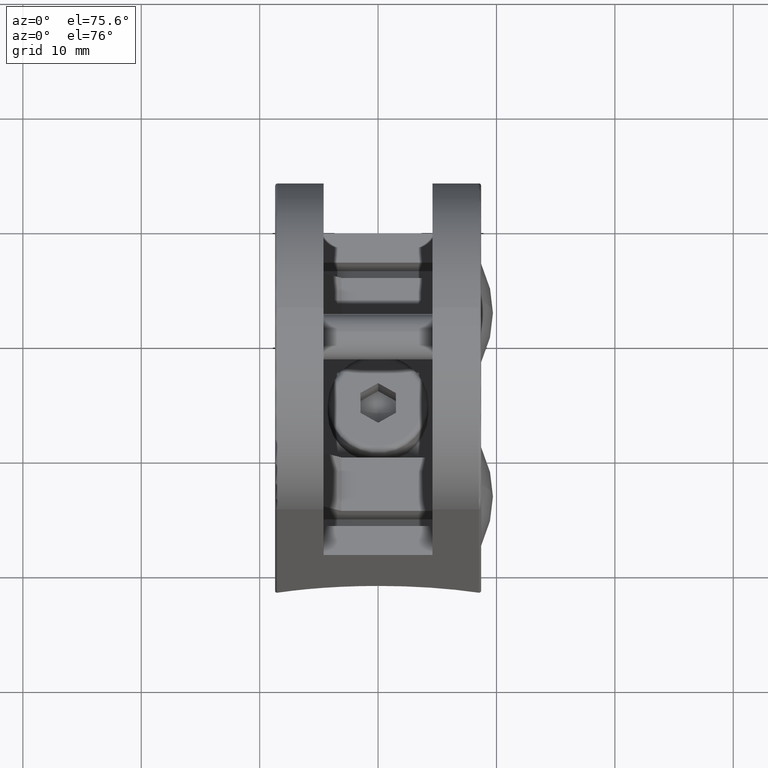
[diagram: clean part render]
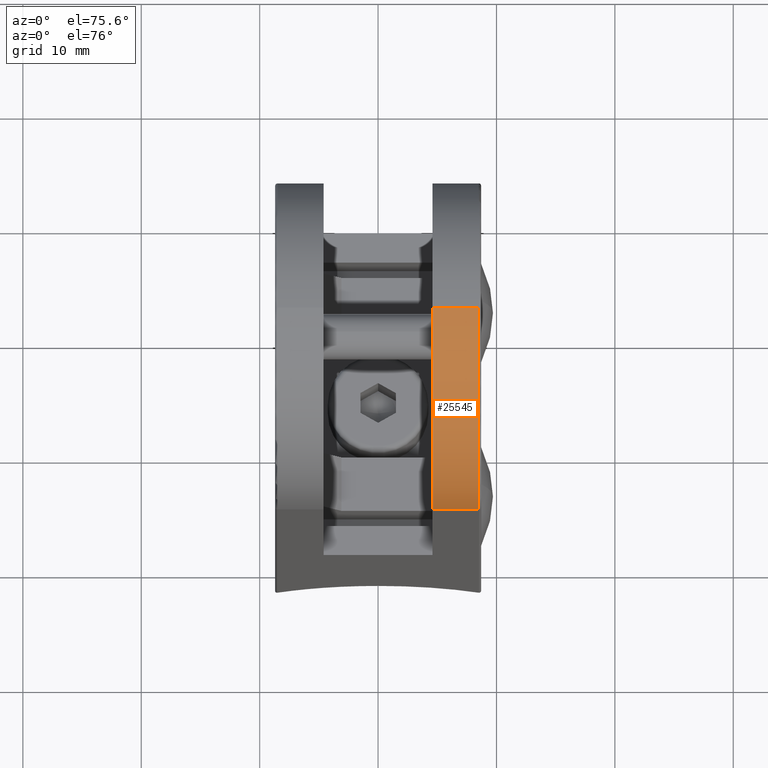
[diagram: same view with one face highlighted and labeled with its STEP entity id]
A machine part, auxiliary view. The second image highlights one B-rep face of the part: STEP entity #25545.
In plain terms, the highlighted cylindrical surface (partial cylindrical patch) has radius 14 mm, axis along (1, 0, 0).
Its self-contained STEP definition (entity closure, byte-faithful):
#2089 = LINE ( 'NONE', #13456, #51732 ) ;
#4888 = EDGE_LOOP ( 'NONE', ( #18836, #37095, #25374, #20579 ) ) ;
#5304 = FACE_OUTER_BOUND ( 'NONE', #4888, .T. ) ;
#6763 = AXIS2_PLACEMENT_3D ( 'NONE', #43684, #47627, #9904 ) ;
#7620 = CARTESIAN_POINT ( 'NONE',  ( 4.099999999999999600, 0.0000000000000000000, 39.99999999999999300 ) ) ;
#9764 = VERTEX_POINT ( 'NONE', #7620 ) ;
#9904 = DIRECTION ( 'NONE',  ( 0.0000000000000000000, 0.0000000000000000000, -1.000000000000000000 ) ) ;
#13154 = AXIS2_PLACEMENT_3D ( 'NONE', #19835, #34784, #43534 ) ;
#13164 = VERTEX_POINT ( 'NONE', #41193 ) ;
#13456 = CARTESIAN_POINT ( 'NONE',  ( 4.099999999999999600, 13.99999999999999300, 25.99999999999999600 ) ) ;
#16308 = VECTOR ( 'NONE', #49326, 1000.000000000000000 ) ;
#17484 = DIRECTION ( 'NONE',  ( 0.0000000000000000000, 0.0000000000000000000, -1.000000000000000000 ) ) ;
#18836 = ORIENTED_EDGE ( 'NONE', *, *, #19249, .F. ) ;
#19249 = EDGE_CURVE ( 'NONE', #9764, #13164, #23693, .T. ) ;
#19835 = CARTESIAN_POINT ( 'NONE',  ( 4.099999999999999600, 0.0000000000000000000, 25.99999999999999600 ) ) ;
#20489 = CARTESIAN_POINT ( 'NONE',  ( 4.099999999999999600, 0.0000000000000000000, 39.99999999999998600 ) ) ;
#20579 = ORIENTED_EDGE ( 'NONE', *, *, #23633, .T. ) ;
#23633 = EDGE_CURVE ( 'NONE', #31528, #13164, #45366, .T. ) ;
#23693 = LINE ( 'NONE', #20489, #16308 ) ;
#25374 = ORIENTED_EDGE ( 'NONE', *, *, #42759, .T. ) ;
#25545 = ADVANCED_FACE ( 'NONE', ( #5304 ), #41664, .T. ) ;
#31528 = VERTEX_POINT ( 'NONE', #37378 ) ;
#34784 = DIRECTION ( 'NONE',  ( -1.000000000000000000, -0.0000000000000000000, -0.0000000000000000000 ) ) ;
#35375 = VERTEX_POINT ( 'NONE', #49708 ) ;
#37095 = ORIENTED_EDGE ( 'NONE', *, *, #54449, .F. ) ;
#37378 = CARTESIAN_POINT ( 'NONE',  ( 0.2000000000000000900, 13.99999999999999300, 25.99999999999999600 ) ) ;
#41193 = CARTESIAN_POINT ( 'NONE',  ( 0.2000000000000000900, 0.0000000000000000000, 39.99999999999999300 ) ) ;
#41664 = CYLINDRICAL_SURFACE ( 'NONE', #13154, 13.99999999999999100 ) ;
#42759 = EDGE_CURVE ( 'NONE', #35375, #31528, #2089, .T. ) ;
#43534 = DIRECTION ( 'NONE',  ( 0.0000000000000000000, 0.0000000000000000000, 1.000000000000000000 ) ) ;
#43684 = CARTESIAN_POINT ( 'NONE',  ( 4.099999999999999600, 0.0000000000000000000, 25.99999999999999600 ) ) ;
#45366 = CIRCLE ( 'NONE', #50043, 13.99999999999999300 ) ;
#47627 = DIRECTION ( 'NONE',  ( 1.000000000000000000, 0.0000000000000000000, 0.0000000000000000000 ) ) ;
#49326 = DIRECTION ( 'NONE',  ( -1.000000000000000000, -0.0000000000000000000, -0.0000000000000000000 ) ) ;
#49708 = CARTESIAN_POINT ( 'NONE',  ( 4.099999999999999600, 13.99999999999999300, 25.99999999999999600 ) ) ;
#50043 = AXIS2_PLACEMENT_3D ( 'NONE', #60029, #59825, #17484 ) ;
#51069 = CIRCLE ( 'NONE', #6763, 13.99999999999999300 ) ;
#51732 = VECTOR ( 'NONE', #55781, 1000.000000000000000 ) ;
#54449 = EDGE_CURVE ( 'NONE', #35375, #9764, #51069, .T. ) ;
#55781 = DIRECTION ( 'NONE',  ( -1.000000000000000000, -0.0000000000000000000, -0.0000000000000000000 ) ) ;
#59825 = DIRECTION ( 'NONE',  ( 1.000000000000000000, 0.0000000000000000000, 0.0000000000000000000 ) ) ;
#60029 = CARTESIAN_POINT ( 'NONE',  ( 0.2000000000000000900, 0.0000000000000000000, 25.99999999999999600 ) ) ;